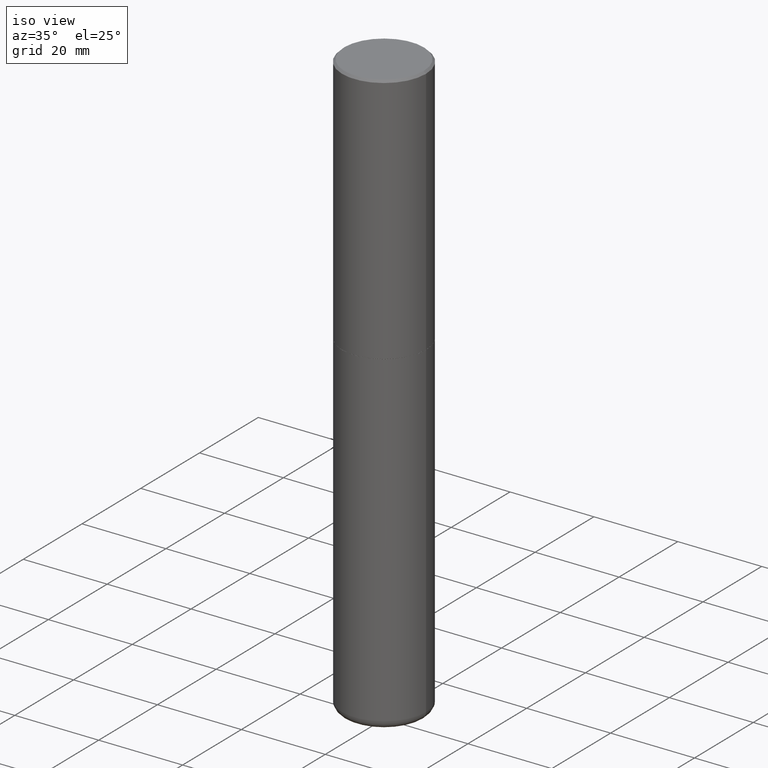
[diagram: clean part render]
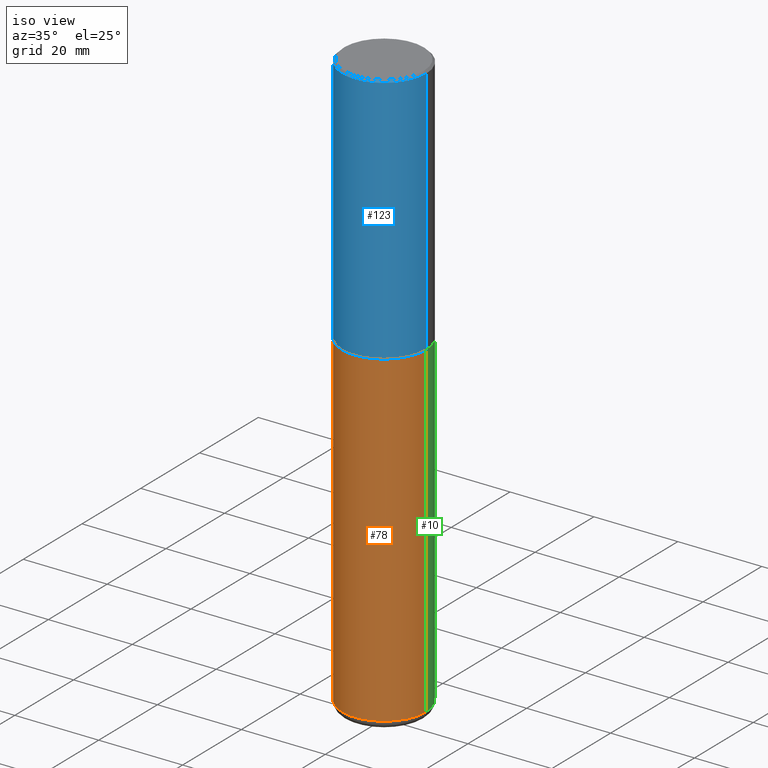
[diagram: same view with three faces highlighted in distinct colors, each labeled with its STEP entity id]
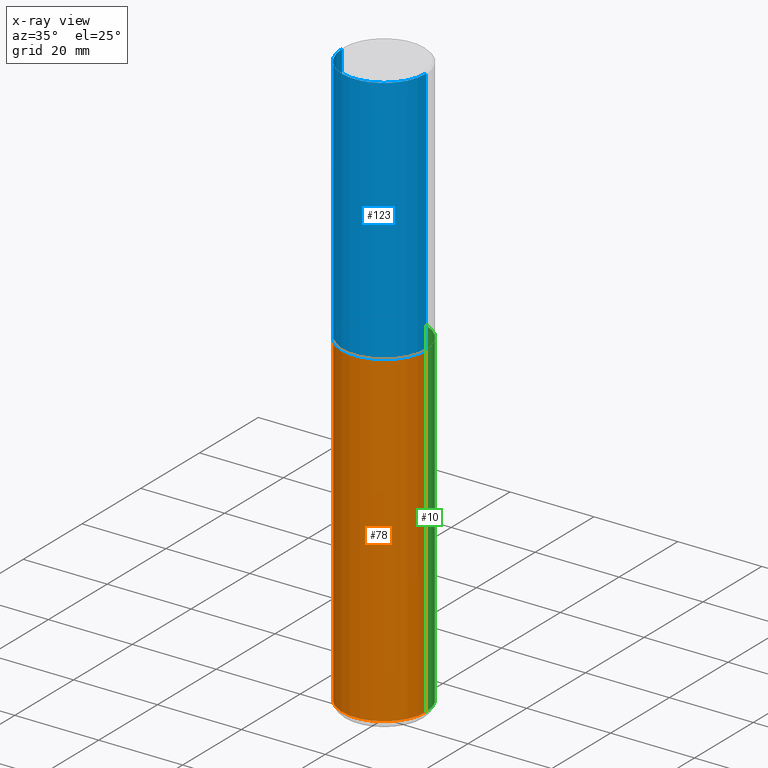
[diagram: x-ray of the same camera — body ghosted, the three highlighted faces saturated]
A machine part, iso view with three faces highlighted in distinct colors.
The next image is the same camera in x-ray (body ghosted, the three faces saturated) — at least one of them is partly hidden behind the body in this view.
Their STEP definitions:

[orange] entity #78 — the highlighted cylindrical surface (partial cylindrical patch) has radius 10 mm, axis along (-0, 0, 1).
#14 = CARTESIAN_POINT ( 'NONE',  ( 1.328647657088446494E-28, -1.896956726206869229E-14, -5.433099999999999596 ) ) ;
#43 = DIRECTION ( 'NONE',  ( 1.000000000000000000, -6.982962677686266711E-15, 0.000000000000000000 ) ) ;
#51 = CARTESIAN_POINT ( 'NONE',  ( -0.3937000000000002164, -1.617216051138117513E-14, -5.433099999999999596 ) ) ;
#55 = CARTESIAN_POINT ( 'NONE',  ( 0.3937000000000000499, -1.099676962482036284E-14, -2.362200000000000077 ) ) ;
#61 = CIRCLE ( 'NONE', #143, 0.3937000000000001054 ) ;
#78 = ADVANCED_FACE ( 'NONE', ( #346 ), #407, .T. ) ;
#79 = CARTESIAN_POINT ( 'NONE',  ( 0.000000000000000000, 0.000000000000000000, 0.000000000000000000 ) ) ;
#83 = DIRECTION ( 'NONE',  ( -2.445468806185136877E-29, 3.491481338843145188E-15, 1.000000000000000000 ) ) ;
#88 = CARTESIAN_POINT ( 'NONE',  ( 5.776686413970529753E-29, -8.247577218615279626E-15, -2.362200000000000077 ) ) ;
#104 = VERTEX_POINT ( 'NONE', #144 ) ;
#121 = AXIS2_PLACEMENT_3D ( 'NONE', #79, #214, #378 ) ;
#143 = AXIS2_PLACEMENT_3D ( 'NONE', #14, #372, #43 ) ;
#144 = CARTESIAN_POINT ( 'NONE',  ( 0.3937000000000002164, -2.171875966827377866E-14, -5.433099999999999596 ) ) ;
#153 = DIRECTION ( 'NONE',  ( -2.445468806185136597E-29, 3.491481338843145583E-15, 1.000000000000000000 ) ) ;
#175 = ORIENTED_EDGE ( 'NONE', *, *, #349, .F. ) ;
#180 = AXIS2_PLACEMENT_3D ( 'NONE', #88, #153, #311 ) ;
#205 = ORIENTED_EDGE ( 'NONE', *, *, #366, .T. ) ;
#207 = CARTESIAN_POINT ( 'NONE',  ( -0.3937000000000001054, 2.797406750687515181E-15, -1.936584745033357016E-29 ) ) ;
#214 = DIRECTION ( 'NONE',  ( -2.445468806185136597E-29, 3.491481338843145583E-15, 1.000000000000000000 ) ) ;
#230 = EDGE_CURVE ( 'NONE', #325, #104, #61, .T. ) ;
#246 = EDGE_CURVE ( 'NONE', #325, #304, #288, .T. ) ;
#252 = CARTESIAN_POINT ( 'NONE',  ( 0.3937000000000001054, -2.749192406205084005E-15, 1.919750796630860452E-29 ) ) ;
#258 = VERTEX_POINT ( 'NONE', #55 ) ;
#288 = LINE ( 'NONE', #207, #417 ) ;
#304 = VERTEX_POINT ( 'NONE', #315 ) ;
#308 = CIRCLE ( 'NONE', #180, 0.3937000000000000499 ) ;
#311 = DIRECTION ( 'NONE',  ( 1.000000000000000000, -6.982962677686267499E-15, 0.000000000000000000 ) ) ;
#315 = CARTESIAN_POINT ( 'NONE',  ( -0.3937000000000000499, -1.081116548965446959E-14, -2.362200000000000077 ) ) ;
#325 = VERTEX_POINT ( 'NONE', #51 ) ;
#346 = FACE_OUTER_BOUND ( 'NONE', #374, .T. ) ;
#349 = EDGE_CURVE ( 'NONE', #304, #258, #308, .T. ) ;
#354 = DIRECTION ( 'NONE',  ( -2.445468806185136877E-29, 3.491481338843145188E-15, 1.000000000000000000 ) ) ;
#366 = EDGE_CURVE ( 'NONE', #104, #258, #377, .T. ) ;
#372 = DIRECTION ( 'NONE',  ( -2.445468806185136597E-29, 3.491481338843145583E-15, 1.000000000000000000 ) ) ;
#374 = EDGE_LOOP ( 'NONE', ( #405, #396, #205, #175 ) ) ;
#377 = LINE ( 'NONE', #252, #394 ) ;
#378 = DIRECTION ( 'NONE',  ( 1.000000000000000000, -6.982962677686266711E-15, 4.876176775795935793E-29 ) ) ;
#394 = VECTOR ( 'NONE', #83, 39.37007874015748143 ) ;
#396 = ORIENTED_EDGE ( 'NONE', *, *, #230, .T. ) ;
#405 = ORIENTED_EDGE ( 'NONE', *, *, #246, .F. ) ;
#407 = CYLINDRICAL_SURFACE ( 'NONE', #121, 0.3937000000000001054 ) ;
#417 = VECTOR ( 'NONE', #354, 39.37007874015748143 ) ;

[blue] entity #123 — the highlighted cylindrical surface (partial cylindrical patch) has radius 10 mm, axis along (-0, 0, 1).
#15 = DIRECTION ( 'NONE',  ( -2.445468806185136597E-29, 3.491481338843145583E-15, 1.000000000000000000 ) ) ;
#22 = LINE ( 'NONE', #44, #201 ) ;
#31 = CIRCLE ( 'NONE', #270, 0.3937000000000002720 ) ;
#37 = VECTOR ( 'NONE', #296, 39.37007874015748143 ) ;
#38 = DIRECTION ( 'NONE',  ( -2.445468806185136597E-29, 3.491481338843145583E-15, 1.000000000000000000 ) ) ;
#44 = CARTESIAN_POINT ( 'NONE',  ( -0.3937000000000002164, 2.797406750687515970E-15, -1.936584745033357576E-29 ) ) ;
#57 = FACE_OUTER_BOUND ( 'NONE', #363, .T. ) ;
#90 = DIRECTION ( 'NONE',  ( 1.000000000000000000, -6.982962677686265922E-15, 0.000000000000000000 ) ) ;
#91 = AXIS2_PLACEMENT_3D ( 'NONE', #380, #15, #215 ) ;
#99 = EDGE_CURVE ( 'NONE', #133, #177, #22, .T. ) ;
#106 = AXIS2_PLACEMENT_3D ( 'NONE', #244, #38, #185 ) ;
#123 = ADVANCED_FACE ( 'NONE', ( #57 ), #247, .T. ) ;
#126 = ORIENTED_EDGE ( 'NONE', *, *, #161, .F. ) ;
#133 = VERTEX_POINT ( 'NONE', #182 ) ;
#147 = CARTESIAN_POINT ( 'NONE',  ( 5.774240945164344150E-29, -8.244085737276435042E-15, -2.361199999999999743 ) ) ;
#149 = DIRECTION ( 'NONE',  ( -2.445468806185136877E-29, 3.491481338843145188E-15, 1.000000000000000000 ) ) ;
#161 = EDGE_CURVE ( 'NONE', #177, #210, #186, .T. ) ;
#169 = ORIENTED_EDGE ( 'NONE', *, *, #273, .T. ) ;
#177 = VERTEX_POINT ( 'NONE', #253 ) ;
#182 = CARTESIAN_POINT ( 'NONE',  ( -0.3937000000000002720, -1.359550931339130834E-15, -2.361199999999999743 ) ) ;
#185 = DIRECTION ( 'NONE',  ( 1.000000000000000000, -6.982962677686266711E-15, 0.000000000000000000 ) ) ;
#186 = CIRCLE ( 'NONE', #106, 0.3937000000000001054 ) ;
#201 = VECTOR ( 'NONE', #149, 39.37007874015748143 ) ;
#206 = EDGE_CURVE ( 'NONE', #402, #210, #350, .T. ) ;
#210 = VERTEX_POINT ( 'NONE', #415 ) ;
#215 = DIRECTION ( 'NONE',  ( 1.000000000000000000, -6.982962677686266711E-15, 4.876176775795935793E-29 ) ) ;
#244 = CARTESIAN_POINT ( 'NONE',  ( 4.890937612370294178E-31, -6.982962677686321191E-17, -0.02000000000000008715 ) ) ;
#247 = CYLINDRICAL_SURFACE ( 'NONE', #91, 0.3937000000000002164 ) ;
#253 = CARTESIAN_POINT ( 'NONE',  ( -0.3937000000000001054, 2.679362779428220707E-15, -0.02000000000000008715 ) ) ;
#254 = DIRECTION ( 'NONE',  ( -2.445468806185136597E-29, 3.491481338843145583E-15, 1.000000000000000000 ) ) ;
#270 = AXIS2_PLACEMENT_3D ( 'NONE', #147, #254, #90 ) ;
#273 = EDGE_CURVE ( 'NONE', #133, #402, #31, .T. ) ;
#296 = DIRECTION ( 'NONE',  ( -2.445468806185136877E-29, 3.491481338843145188E-15, 1.000000000000000000 ) ) ;
#309 = CARTESIAN_POINT ( 'NONE',  ( 0.3937000000000002720, -1.099327814348151984E-14, -2.361199999999999743 ) ) ;
#333 = CARTESIAN_POINT ( 'NONE',  ( 0.3937000000000002164, -2.749192406205084794E-15, 1.919750796630861012E-29 ) ) ;
#350 = LINE ( 'NONE', #333, #37 ) ;
#358 = ORIENTED_EDGE ( 'NONE', *, *, #206, .T. ) ;
#363 = EDGE_LOOP ( 'NONE', ( #387, #169, #358, #126 ) ) ;
#380 = CARTESIAN_POINT ( 'NONE',  ( 0.000000000000000000, 0.000000000000000000, 0.000000000000000000 ) ) ;
#387 = ORIENTED_EDGE ( 'NONE', *, *, #99, .F. ) ;
#402 = VERTEX_POINT ( 'NONE', #309 ) ;
#415 = CARTESIAN_POINT ( 'NONE',  ( 0.3937000000000001054, -2.770807688499516128E-15, -0.02000000000000008715 ) ) ;

[green] entity #10 — the highlighted cylindrical surface (partial cylindrical patch) has radius 10 mm, axis along (-0, 0, 1).
#10 = ADVANCED_FACE ( 'NONE', ( #67 ), #331, .T. ) ;
#28 = DIRECTION ( 'NONE',  ( 1.000000000000000000, -6.982962677686267499E-15, 0.000000000000000000 ) ) ;
#35 = CARTESIAN_POINT ( 'NONE',  ( 5.776686413970529753E-29, -8.247577218615279626E-15, -2.362200000000000077 ) ) ;
#48 = EDGE_CURVE ( 'NONE', #258, #304, #314, .T. ) ;
#51 = CARTESIAN_POINT ( 'NONE',  ( -0.3937000000000002164, -1.617216051138117513E-14, -5.433099999999999596 ) ) ;
#55 = CARTESIAN_POINT ( 'NONE',  ( 0.3937000000000000499, -1.099676962482036284E-14, -2.362200000000000077 ) ) ;
#59 = DIRECTION ( 'NONE',  ( -2.445468806185136597E-29, 3.491481338843145583E-15, 1.000000000000000000 ) ) ;
#67 = FACE_OUTER_BOUND ( 'NONE', #341, .T. ) ;
#83 = DIRECTION ( 'NONE',  ( -2.445468806185136877E-29, 3.491481338843145188E-15, 1.000000000000000000 ) ) ;
#104 = VERTEX_POINT ( 'NONE', #144 ) ;
#105 = ORIENTED_EDGE ( 'NONE', *, *, #366, .F. ) ;
#110 = DIRECTION ( 'NONE',  ( 1.000000000000000000, -6.982962677686266711E-15, 0.000000000000000000 ) ) ;
#112 = AXIS2_PLACEMENT_3D ( 'NONE', #166, #295, #392 ) ;
#119 = DIRECTION ( 'NONE',  ( -2.445468806185136597E-29, 3.491481338843145583E-15, 1.000000000000000000 ) ) ;
#124 = ORIENTED_EDGE ( 'NONE', *, *, #48, .F. ) ;
#144 = CARTESIAN_POINT ( 'NONE',  ( 0.3937000000000002164, -2.171875966827377866E-14, -5.433099999999999596 ) ) ;
#166 = CARTESIAN_POINT ( 'NONE',  ( 0.000000000000000000, 0.000000000000000000, 0.000000000000000000 ) ) ;
#207 = CARTESIAN_POINT ( 'NONE',  ( -0.3937000000000001054, 2.797406750687515181E-15, -1.936584745033357016E-29 ) ) ;
#211 = CIRCLE ( 'NONE', #276, 0.3937000000000001054 ) ;
#246 = EDGE_CURVE ( 'NONE', #325, #304, #288, .T. ) ;
#252 = CARTESIAN_POINT ( 'NONE',  ( 0.3937000000000001054, -2.749192406205084005E-15, 1.919750796630860452E-29 ) ) ;
#258 = VERTEX_POINT ( 'NONE', #55 ) ;
#264 = ORIENTED_EDGE ( 'NONE', *, *, #348, .T. ) ;
#276 = AXIS2_PLACEMENT_3D ( 'NONE', #413, #119, #110 ) ;
#288 = LINE ( 'NONE', #207, #417 ) ;
#295 = DIRECTION ( 'NONE',  ( -2.445468806185136597E-29, 3.491481338843145583E-15, 1.000000000000000000 ) ) ;
#304 = VERTEX_POINT ( 'NONE', #315 ) ;
#314 = CIRCLE ( 'NONE', #352, 0.3937000000000000499 ) ;
#315 = CARTESIAN_POINT ( 'NONE',  ( -0.3937000000000000499, -1.081116548965446959E-14, -2.362200000000000077 ) ) ;
#325 = VERTEX_POINT ( 'NONE', #51 ) ;
#331 = CYLINDRICAL_SURFACE ( 'NONE', #112, 0.3937000000000001054 ) ;
#341 = EDGE_LOOP ( 'NONE', ( #264, #355, #124, #105 ) ) ;
#348 = EDGE_CURVE ( 'NONE', #104, #325, #211, .T. ) ;
#352 = AXIS2_PLACEMENT_3D ( 'NONE', #35, #59, #28 ) ;
#354 = DIRECTION ( 'NONE',  ( -2.445468806185136877E-29, 3.491481338843145188E-15, 1.000000000000000000 ) ) ;
#355 = ORIENTED_EDGE ( 'NONE', *, *, #246, .T. ) ;
#366 = EDGE_CURVE ( 'NONE', #104, #258, #377, .T. ) ;
#377 = LINE ( 'NONE', #252, #394 ) ;
#392 = DIRECTION ( 'NONE',  ( 1.000000000000000000, -6.982962677686266711E-15, 4.876176775795935793E-29 ) ) ;
#394 = VECTOR ( 'NONE', #83, 39.37007874015748143 ) ;
#413 = CARTESIAN_POINT ( 'NONE',  ( 1.328647657088446494E-28, -1.896956726206869229E-14, -5.433099999999999596 ) ) ;
#417 = VECTOR ( 'NONE', #354, 39.37007874015748143 ) ;